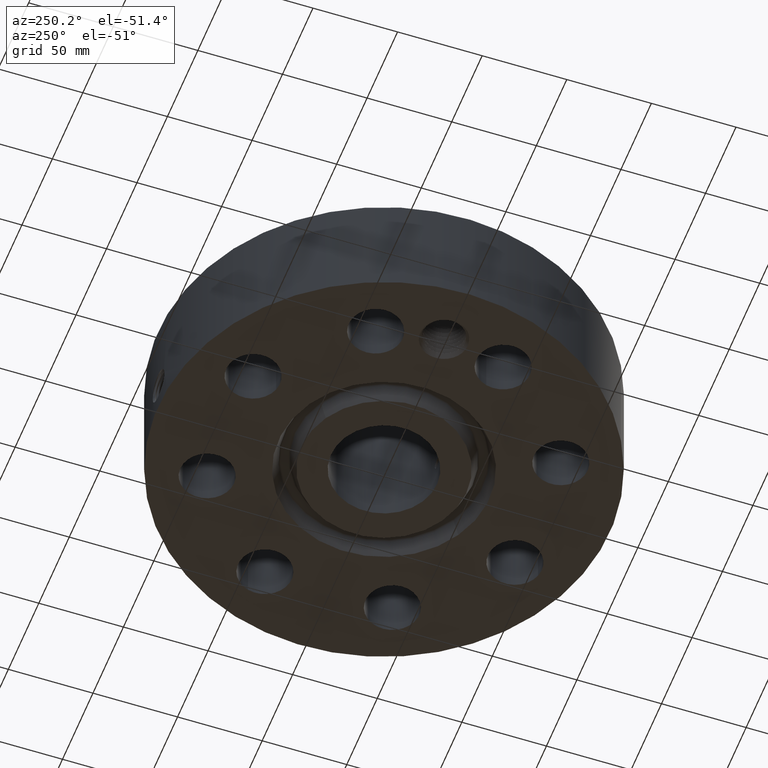
[diagram: clean part render]
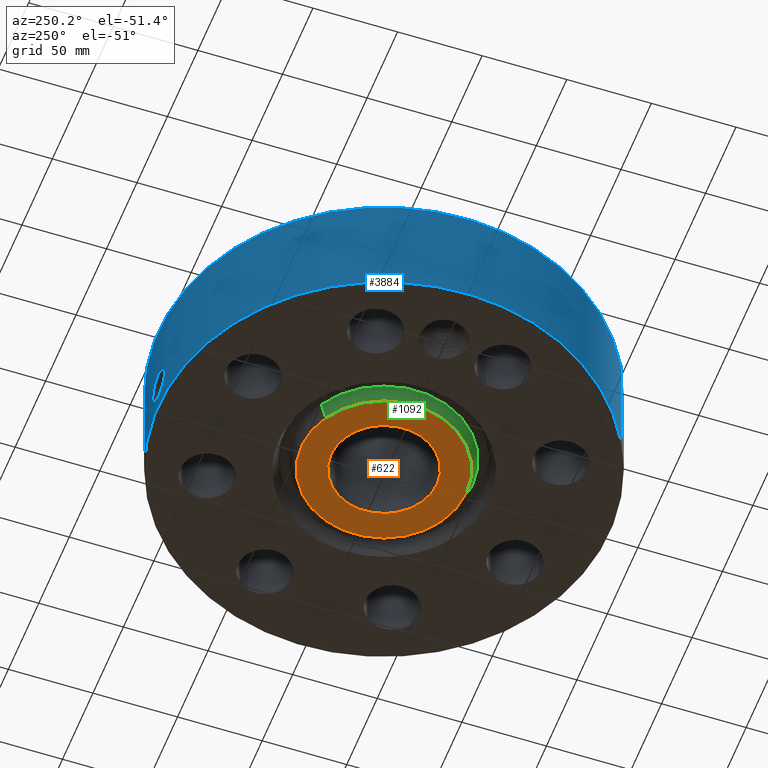
[diagram: same view with three faces highlighted in distinct colors, each labeled with its STEP entity id]
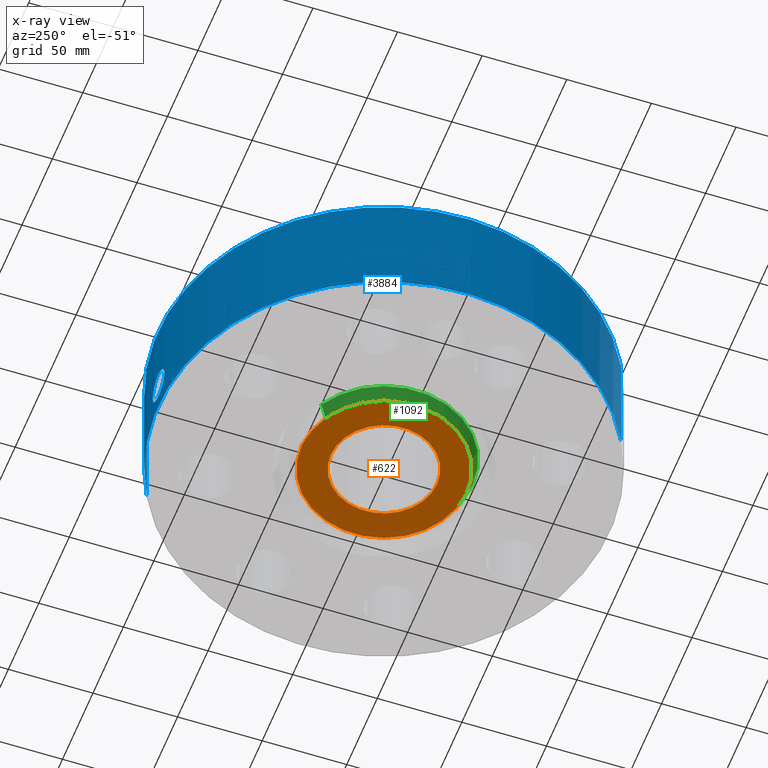
[diagram: x-ray of the same camera — body ghosted, the three highlighted faces saturated]
A machine part, auxiliary view with three faces highlighted in distinct colors.
The next image is the same camera in x-ray (body ghosted, the three faces saturated) — at least one of them is partly hidden behind the body in this view.
Their STEP definitions:

[orange] entity #622 — the highlighted planar face has unit normal (0, 0, -1).
#252=AXIS2_PLACEMENT_3D('Circle Axis2P3D',#250,#251,$) ;
#543=AXIS2_PLACEMENT_3D('Circle Axis2P3D',#541,#542,$) ;
#598=AXIS2_PLACEMENT_3D('Plane Axis2P3D',#595,#596,#597) ;
#602=AXIS2_PLACEMENT_3D('Circle Axis2P3D',#600,#601,$) ;
#611=AXIS2_PLACEMENT_3D('Circle Axis2P3D',#609,#610,$) ;
#247=CARTESIAN_POINT('Vertex',(0.591850827409,1.08337567266,-5.59482469102E-015)) ;
#250=CARTESIAN_POINT('Axis2P3D Location',(0.,0.,-6.71378962923E-015)) ;
#254=CARTESIAN_POINT('Vertex',(-0.591850827409,-1.08337567266,-5.59482469102E-015)) ;
#541=CARTESIAN_POINT('Axis2P3D Location',(0.,0.,-6.71378962923E-015)) ;
#595=CARTESIAN_POINT('Axis2P3D Location',(0.,1.2345,0.)) ;
#600=CARTESIAN_POINT('Axis2P3D Location',(-5.59482469102E-016,0.,0.)) ;
#604=CARTESIAN_POINT('Vertex',(-0.921455885201,1.68671368396,0.)) ;
#606=CARTESIAN_POINT('Vertex',(0.921455885201,-1.68671368396,0.)) ;
#609=CARTESIAN_POINT('Axis2P3D Location',(2.79741234551E-016,0.,0.)) ;
#251=DIRECTION('Axis2P3D Direction',(0.,0.,-0.0393700787402)) ;
#542=DIRECTION('Axis2P3D Direction',(0.,0.,-0.0393700787402)) ;
#596=DIRECTION('Axis2P3D Direction',(0.,0.,-0.0393700787402)) ;
#597=DIRECTION('Axis2P3D XDirection',(0.0393700787402,0.,0.)) ;
#601=DIRECTION('Axis2P3D Direction',(0.,0.,-0.0393700787402)) ;
#610=DIRECTION('Axis2P3D Direction',(0.,0.,-0.0393700787402)) ;
#615=ORIENTED_EDGE('',*,*,#608,.T.) ;
#616=ORIENTED_EDGE('',*,*,#613,.T.) ;
#619=ORIENTED_EDGE('',*,*,#256,.F.) ;
#620=ORIENTED_EDGE('',*,*,#545,.F.) ;
#621=FACE_BOUND('',#618,.T.) ;
#622=ADVANCED_FACE('PartBody',(#617,#621),#599,.T.) ;
#253=CIRCLE('generated circle',#252,1.2345) ;
#544=CIRCLE('generated circle',#543,1.2345) ;
#603=CIRCLE('generated circle',#602,1.92200000001) ;
#612=CIRCLE('generated circle',#611,1.92200000001) ;
#256=EDGE_CURVE('',#248,#255,#253,.T.) ;
#545=EDGE_CURVE('',#255,#248,#544,.T.) ;
#608=EDGE_CURVE('',#605,#607,#603,.T.) ;
#613=EDGE_CURVE('',#607,#605,#612,.T.) ;
#614=EDGE_LOOP('',(#615,#616)) ;
#618=EDGE_LOOP('',(#619,#620)) ;
#617=FACE_OUTER_BOUND('',#614,.T.) ;
#599=PLANE('',#598) ;
#248=VERTEX_POINT('',#247) ;
#255=VERTEX_POINT('',#254) ;
#605=VERTEX_POINT('',#604) ;
#607=VERTEX_POINT('',#606) ;

[blue] entity #3884 — the highlighted cylindrical surface (partial cylindrical patch) has radius 133.35 mm, axis along (0, 0, -1).
#2927=AXIS2_PLACEMENT_3D('Circle Axis2P3D',#2925,#2926,$) ;
#3771=AXIS2_PLACEMENT_3D('Cylinder Axis2P3D',#3768,#3769,#3770) ;
#3775=AXIS2_PLACEMENT_3D('Circle Axis2P3D',#3773,#3774,$) ;
#2920=CARTESIAN_POINT('Vertex',(2.51698407768,4.60730844994,2.62500000001)) ;
#2922=CARTESIAN_POINT('Vertex',(-2.51698407768,-4.60730844994,2.62500000001)) ;
#2925=CARTESIAN_POINT('Axis2P3D Location',(0.,0.,2.62500000001)) ;
#3768=CARTESIAN_POINT('Axis2P3D Location',(0.,0.,2.99750000001)) ;
#3773=CARTESIAN_POINT('Axis2P3D Location',(0.,0.,5.59482469102E-016)) ;
#3777=CARTESIAN_POINT('Vertex',(-2.51698407768,-4.60730844994,5.59482469102E-016)) ;
#3779=CARTESIAN_POINT('Vertex',(2.51698407768,4.60730844994,5.59482469102E-016)) ;
#3782=CARTESIAN_POINT('Line Origine',(-2.51698407768,-4.60730844994,1.31250000001)) ;
#3787=CARTESIAN_POINT('Line Origine',(2.51698407768,4.60730844994,1.31250000001)) ;
#3799=CARTESIAN_POINT('Control Point',(-0.0642565419586,5.24960675642,1.09822782548)) ;
#3800=CARTESIAN_POINT('Control Point',(-0.0433130365703,5.24986311033,1.10210062824)) ;
#3801=CARTESIAN_POINT('Control Point',(-0.0220171462136,5.24999704247,1.10407525058)) ;
#3802=CARTESIAN_POINT('Control Point',(-0.000716901039732,5.24999995107,1.10411849726)) ;
#3803=CARTESIAN_POINT('Vertex',(-0.0642341499509,5.24960730474,1.0982322716)) ;
#3805=CARTESIAN_POINT('Vertex',(-0.000716698655926,5.2499999511,1.10411850752)) ;
#3809=CARTESIAN_POINT('Control Point',(-0.0642340213415,5.24960703203,1.09823162484)) ;
#3810=CARTESIAN_POINT('Control Point',(-0.101367608457,5.24915266666,1.09265370348)) ;
#3811=CARTESIAN_POINT('Control Point',(-0.137571702369,5.24830194678,1.08041619257)) ;
#3812=CARTESIAN_POINT('Control Point',(-0.17070982714,5.2472238522,1.06251500554)) ;
#3813=CARTESIAN_POINT('Vertex',(-0.17070982714,5.2472238522,1.06251500554)) ;
#3817=CARTESIAN_POINT('Control Point',(-0.0292241829011,5.24991866102,0.341058914193)) ;
#3818=CARTESIAN_POINT('Control Point',(-0.0757986336167,5.24965939981,0.347030416453)) ;
#3819=CARTESIAN_POINT('Control Point',(-0.121210187788,5.24889011667,0.360520752782)) ;
#3820=CARTESIAN_POINT('Control Point',(-0.163721858542,5.24767091939,0.381165617438)) ;
#3821=CARTESIAN_POINT('Control Point',(-0.257613223993,5.24410928576,0.446326122397)) ;
#3822=CARTESIAN_POINT('Control Point',(-0.321981442025,5.2402728604,0.539904600037)) ;
#3823=CARTESIAN_POINT('Control Point',(-0.34759182454,5.23849692581,0.601510173682)) ;
#3824=CARTESIAN_POINT('Control Point',(-0.367018684605,5.23715940473,0.698798378103)) ;
#3825=CARTESIAN_POINT('Control Point',(-0.357452270057,5.2378180432,0.795206744476)) ;
#3826=CARTESIAN_POINT('Control Point',(-0.350906096152,5.23826917076,0.827331385511)) ;
#3827=CARTESIAN_POINT('Control Point',(-0.326667880152,5.23988640012,0.904448039405)) ;
#3828=CARTESIAN_POINT('Control Point',(-0.283222063869,5.24246130971,0.973052153684)) ;
#3829=CARTESIAN_POINT('Control Point',(-0.250890417191,5.24419240888,1.00949215108)) ;
#3830=CARTESIAN_POINT('Control Point',(-0.212821116431,5.24585383043,1.03976652349)) ;
#3831=CARTESIAN_POINT('Control Point',(-0.17070982714,5.2472238522,1.06251500554)) ;
#3832=CARTESIAN_POINT('Vertex',(-0.0292241829011,5.24991866102,0.341058914193)) ;
#3836=CARTESIAN_POINT('Control Point',(-0.0292241829011,5.24991866102,0.341058914193)) ;
#3837=CARTESIAN_POINT('Control Point',(-0.0194758749728,5.24997292593,0.340856457999)) ;
#3838=CARTESIAN_POINT('Control Point',(-0.00972559935064,5.25000000508,0.340961817465)) ;
#3839=CARTESIAN_POINT('Control Point',(2.72878353289E-006,5.25000000002,0.341374667804)) ;
#3840=CARTESIAN_POINT('Vertex',(2.728783536E-006,5.25000000002,0.341374667804)) ;
#3844=CARTESIAN_POINT('Control Point',(0.194329401017,5.24640220381,0.3942906393)) ;
#3845=CARTESIAN_POINT('Control Point',(0.134784268462,5.24860778575,0.362218242375)) ;
#3846=CARTESIAN_POINT('Control Point',(0.0678212209536,5.24999996477,0.344252745217)) ;
#3847=CARTESIAN_POINT('Control Point',(2.72878353289E-006,5.25000000002,0.341374667804)) ;
#3848=CARTESIAN_POINT('Vertex',(0.194329401017,5.24640220381,0.3942906393)) ;
#3852=CARTESIAN_POINT('Control Point',(0.194329401017,5.24640220381,0.3942906393)) ;
#3853=CARTESIAN_POINT('Control Point',(0.245491770473,5.24450712367,0.421847883817)) ;
#3854=CARTESIAN_POINT('Control Point',(0.292059501551,5.24215771296,0.457986214433)) ;
#3855=CARTESIAN_POINT('Control Point',(0.332013374831,5.23964261044,0.502108497463)) ;
#3856=CARTESIAN_POINT('Control Point',(0.391712447476,5.23546450526,0.600666519043)) ;
#3857=CARTESIAN_POINT('Control Point',(0.411028559298,5.23387653346,0.713977122045)) ;
#3858=CARTESIAN_POINT('Control Point',(0.409563646056,5.23399901153,0.770037204584)) ;
#3859=CARTESIAN_POINT('Control Point',(0.384642380116,5.23601093276,0.880973427584)) ;
#3860=CARTESIAN_POINT('Control Point',(0.321410523744,5.24032086363,0.973704000843)) ;
#3861=CARTESIAN_POINT('Control Point',(0.280632401156,5.24278573037,1.01396109149)) ;
#3862=CARTESIAN_POINT('Control Point',(0.201889943197,5.24656144924,1.06790107998)) ;
#3863=CARTESIAN_POINT('Control Point',(0.112894729228,5.24898233185,1.09620969237)) ;
#3864=CARTESIAN_POINT('Control Point',(0.0753580382171,5.24966520022,1.10335683808)) ;
#3865=CARTESIAN_POINT('Control Point',(0.0374937145302,5.25000018475,1.10599233718)) ;
#3866=CARTESIAN_POINT('Control Point',(-2.58579355084E-005,5.24999999996,1.10415298436)) ;
#3867=CARTESIAN_POINT('Vertex',(-2.58579355206E-005,5.24999999996,1.10415298436)) ;
#3871=CARTESIAN_POINT('Control Point',(-0.000716698644566,5.2499999511,1.10411850751)) ;
#3872=CARTESIAN_POINT('Control Point',(-0.000371301620963,5.24999999825,1.10413604941)) ;
#3873=CARTESIAN_POINT('Control Point',(-2.58579428092E-005,5.24999999996,1.10415298436)) ;
#2926=DIRECTION('Axis2P3D Direction',(0.,0.,-0.0393700787402)) ;
#3769=DIRECTION('Axis2P3D Direction',(0.,0.,-0.0393700787402)) ;
#3770=DIRECTION('Axis2P3D XDirection',(0.0188750212049,0.0345504945626,0.)) ;
#3774=DIRECTION('Axis2P3D Direction',(0.,0.,-0.0393700787402)) ;
#3783=DIRECTION('Vector Direction',(0.,0.,-0.0393700787402)) ;
#3788=DIRECTION('Vector Direction',(0.,0.,-0.0393700787402)) ;
#3784=VECTOR('Line Direction',#3783,0.0393700787402) ;
#3789=VECTOR('Line Direction',#3788,0.0393700787402) ;
#3793=ORIENTED_EDGE('',*,*,#3781,.F.) ;
#3794=ORIENTED_EDGE('',*,*,#3786,.T.) ;
#3795=ORIENTED_EDGE('',*,*,#2929,.T.) ;
#3796=ORIENTED_EDGE('',*,*,#3791,.F.) ;
#3876=ORIENTED_EDGE('',*,*,#3807,.F.) ;
#3877=ORIENTED_EDGE('',*,*,#3815,.T.) ;
#3878=ORIENTED_EDGE('',*,*,#3834,.F.) ;
#3879=ORIENTED_EDGE('',*,*,#3842,.T.) ;
#3880=ORIENTED_EDGE('',*,*,#3850,.F.) ;
#3881=ORIENTED_EDGE('',*,*,#3869,.T.) ;
#3882=ORIENTED_EDGE('',*,*,#3874,.F.) ;
#3883=FACE_BOUND('',#3875,.T.) ;
#3884=ADVANCED_FACE('PartBody',(#3797,#3883),#3772,.T.) ;
#3798=B_SPLINE_CURVE_WITH_KNOTS('',3,(#3799,#3800,#3801,#3802),.UNSPECIFIED.,.F.,.U.,(4,4),(4.15880365714,6.5218752253),.UNSPECIFIED.) ;
#3808=B_SPLINE_CURVE_WITH_KNOTS('',3,(#3809,#3810,#3811,#3812),.UNSPECIFIED.,.F.,.U.,(4,4),(0.,4.2191083591),.UNSPECIFIED.) ;
#3816=B_SPLINE_CURVE_WITH_KNOTS('',5,(#3817,#3818,#3819,#3820,#3821,#3822,#3823,#3824,#3825,#3826,#3827,#3828,#3829,#3830,#3831),.UNSPECIFIED.,.F.,.U.,(6,3,3,3,6),(0.,8.16106559782,20.0085203286,26.0732220395,35.0091577274),.UNSPECIFIED.) ;
#3835=B_SPLINE_CURVE_WITH_KNOTS('',3,(#3836,#3837,#3838,#3839),.UNSPECIFIED.,.F.,.U.,(4,4),(0.,1.01672404367),.UNSPECIFIED.) ;
#3843=B_SPLINE_CURVE_WITH_KNOTS('',3,(#3844,#3845,#3846,#3847),.UNSPECIFIED.,.F.,.U.,(4,4),(0.,7.08782543074),.UNSPECIFIED.) ;
#3851=B_SPLINE_CURVE_WITH_KNOTS('',5,(#3852,#3853,#3854,#3855,#3856,#3857,#3858,#3859,#3860,#3861,#3862,#3863,#3864,#3865,#3866),.UNSPECIFIED.,.F.,.U.,(6,3,3,3,6),(0.,10.1500023478,19.679132745,29.7545967953,36.7677817924),.UNSPECIFIED.) ;
#3870=B_SPLINE_CURVE_WITH_KNOTS('',2,(#3871,#3872,#3873),.UNSPECIFIED.,.F.,.U.,(3,3),(1.08994559752,1.11577382963),.UNSPECIFIED.) ;
#2928=CIRCLE('generated circle',#2927,5.25000000002) ;
#3776=CIRCLE('generated circle',#3775,5.25000000002) ;
#3772=CYLINDRICAL_SURFACE('generated cylinder',#3771,5.25000000002) ;
#2929=EDGE_CURVE('',#2923,#2921,#2928,.T.) ;
#3781=EDGE_CURVE('',#3778,#3780,#3776,.T.) ;
#3786=EDGE_CURVE('',#3778,#2923,#3785,.F.) ;
#3791=EDGE_CURVE('',#3780,#2921,#3790,.F.) ;
#3807=EDGE_CURVE('',#3804,#3806,#3798,.T.) ;
#3815=EDGE_CURVE('',#3804,#3814,#3808,.T.) ;
#3834=EDGE_CURVE('',#3833,#3814,#3816,.T.) ;
#3842=EDGE_CURVE('',#3833,#3841,#3835,.T.) ;
#3850=EDGE_CURVE('',#3849,#3841,#3843,.T.) ;
#3869=EDGE_CURVE('',#3849,#3868,#3851,.T.) ;
#3874=EDGE_CURVE('',#3806,#3868,#3870,.T.) ;
#3792=EDGE_LOOP('',(#3793,#3794,#3795,#3796)) ;
#3875=EDGE_LOOP('',(#3876,#3877,#3878,#3879,#3880,#3881,#3882)) ;
#3797=FACE_OUTER_BOUND('',#3792,.T.) ;
#3785=LINE('Line',#3782,#3784) ;
#3790=LINE('Line',#3787,#3789) ;
#2921=VERTEX_POINT('',#2920) ;
#2923=VERTEX_POINT('',#2922) ;
#3778=VERTEX_POINT('',#3777) ;
#3780=VERTEX_POINT('',#3779) ;
#3804=VERTEX_POINT('',#3803) ;
#3806=VERTEX_POINT('',#3805) ;
#3814=VERTEX_POINT('',#3813) ;
#3833=VERTEX_POINT('',#3832) ;
#3841=VERTEX_POINT('',#3840) ;
#3849=VERTEX_POINT('',#3848) ;
#3868=VERTEX_POINT('',#3867) ;

[green] entity #1092 — the highlighted conical surface has half-angle 23 deg.
#611=AXIS2_PLACEMENT_3D('Circle Axis2P3D',#609,#610,$) ;
#1053=AXIS2_PLACEMENT_3D('Cone Axis2P3D',#1050,#1051,#1052) ;
#1083=AXIS2_PLACEMENT_3D('Circle Axis2P3D',#1081,#1082,$) ;
#604=CARTESIAN_POINT('Vertex',(-0.921455885201,1.68671368396,0.)) ;
#606=CARTESIAN_POINT('Vertex',(0.921455885201,-1.68671368396,0.)) ;
#609=CARTESIAN_POINT('Axis2P3D Location',(2.79741234551E-016,0.,0.)) ;
#1050=CARTESIAN_POINT('Axis2P3D Location',(0.,0.,-0.0600000000002)) ;
#1055=CARTESIAN_POINT('Line Origine',(-0.955893237031,1.74975083365,0.169221933855)) ;
#1059=CARTESIAN_POINT('Vertex',(-0.990330588862,1.81278798335,0.338443867711)) ;
#1066=CARTESIAN_POINT('Vertex',(0.990330588862,-1.81278798335,0.338443867711)) ;
#1069=CARTESIAN_POINT('Line Origine',(0.955893237031,-1.74975083365,0.169221933855)) ;
#1081=CARTESIAN_POINT('Axis2P3D Location',(0.,0.,0.338443867711)) ;
#610=DIRECTION('Axis2P3D Direction',(0.,0.,-0.0393700787402)) ;
#1051=DIRECTION('Axis2P3D Direction',(0.,0.,0.0393700787402)) ;
#1052=DIRECTION('Axis2P3D XDirection',(-0.0188750212049,0.0345504945626,0.)) ;
#1056=DIRECTION('Vector Direction',(-0.00737505833565,0.0134999537303,0.0362403485611)) ;
#1070=DIRECTION('Vector Direction',(0.00737505833565,-0.0134999537303,0.0362403485611)) ;
#1082=DIRECTION('Axis2P3D Direction',(0.,0.,0.0393700787402)) ;
#1057=VECTOR('Line Direction',#1056,0.0393700787402) ;
#1071=VECTOR('Line Direction',#1070,0.0393700787402) ;
#1087=ORIENTED_EDGE('',*,*,#1073,.F.) ;
#1088=ORIENTED_EDGE('',*,*,#1085,.F.) ;
#1089=ORIENTED_EDGE('',*,*,#1061,.T.) ;
#1090=ORIENTED_EDGE('',*,*,#613,.F.) ;
#1092=ADVANCED_FACE('PartBody',(#1091),#1054,.T.) ;
#612=CIRCLE('generated circle',#611,1.92200000001) ;
#1084=CIRCLE('generated circle',#1083,2.06566089855) ;
#1054=CONICAL_SURFACE('Cone',#1053,1.89653151104,0.401425727959) ;
#613=EDGE_CURVE('',#607,#605,#612,.T.) ;
#1061=EDGE_CURVE('',#1060,#605,#1058,.F.) ;
#1073=EDGE_CURVE('',#1067,#607,#1072,.F.) ;
#1085=EDGE_CURVE('',#1060,#1067,#1084,.T.) ;
#1086=EDGE_LOOP('',(#1087,#1088,#1089,#1090)) ;
#1091=FACE_OUTER_BOUND('',#1086,.T.) ;
#1058=LINE('Line',#1055,#1057) ;
#1072=LINE('Line',#1069,#1071) ;
#605=VERTEX_POINT('',#604) ;
#607=VERTEX_POINT('',#606) ;
#1060=VERTEX_POINT('',#1059) ;
#1067=VERTEX_POINT('',#1066) ;